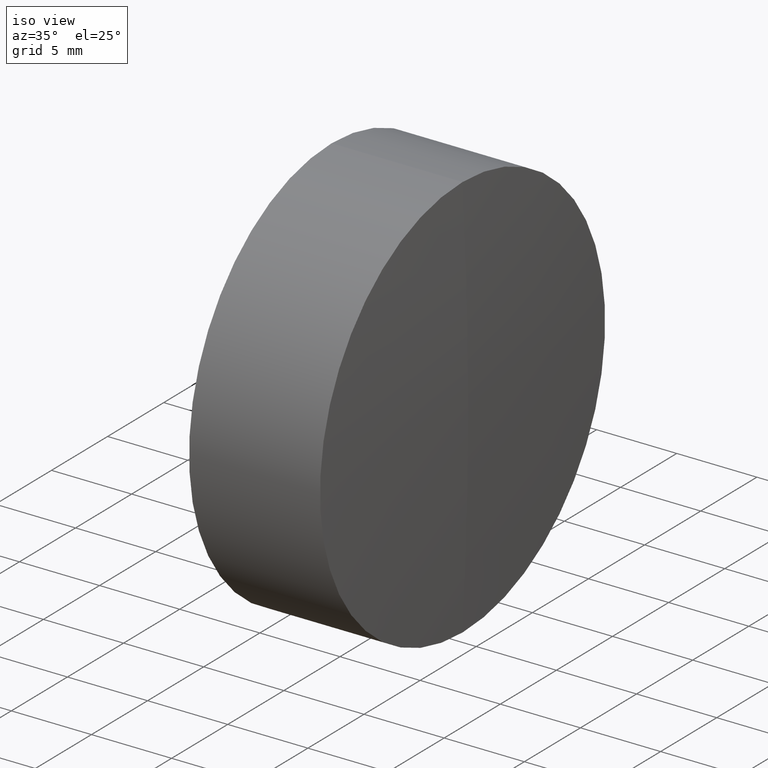
[diagram: clean part render]
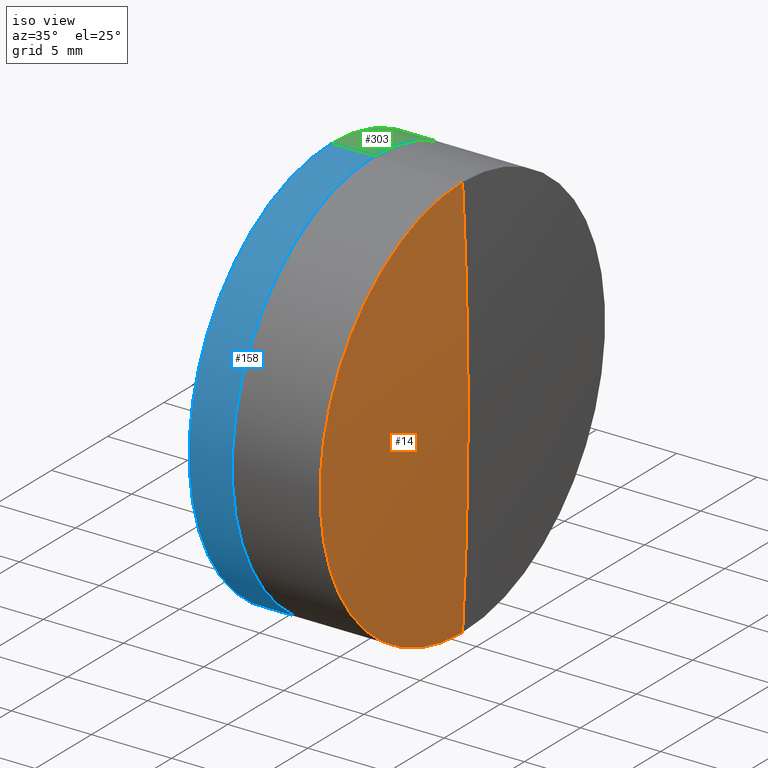
[diagram: same view with three faces highlighted in distinct colors, each labeled with its STEP entity id]
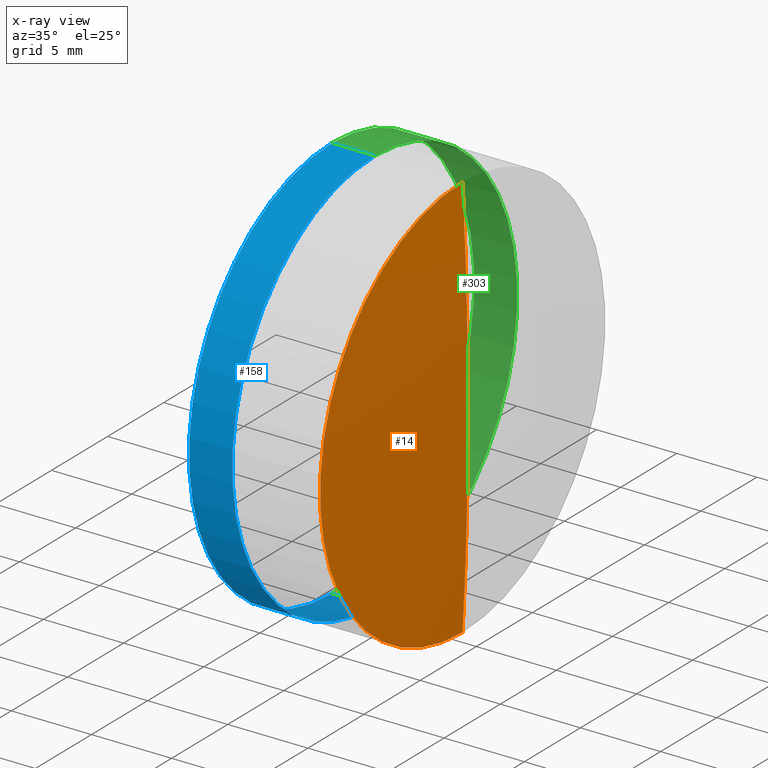
[diagram: x-ray of the same camera — body ghosted, the three highlighted faces saturated]
A machine part, iso view with three faces highlighted in distinct colors.
The next image is the same camera in x-ray (body ghosted, the three faces saturated) — at least one of them is partly hidden behind the body in this view.
Their STEP definitions:

[orange] entity #14 — the highlighted spherical surface has radius 230.7 mm.
#7 = VERTEX_POINT ( 'NONE', #255 ) ;
#14 = ADVANCED_FACE ( 'NONE', ( #160 ), #109, .T. ) ;
#16 = EDGE_CURVE ( 'NONE', #56, #7, #328, .T. ) ;
#22 = DIRECTION ( 'NONE',  ( 0.0000000000000000000, -1.224646799147353200E-016, 1.000000000000000000 ) ) ;
#25 = AXIS2_PLACEMENT_3D ( 'NONE', #308, #245, #220 ) ;
#51 = EDGE_CURVE ( 'NONE', #56, #55, #168, .T. ) ;
#55 = VERTEX_POINT ( 'NONE', #257 ) ;
#56 = VERTEX_POINT ( 'NONE', #100 ) ;
#58 = AXIS2_PLACEMENT_3D ( 'NONE', #218, #161, #22 ) ;
#73 = DIRECTION ( 'NONE',  ( 0.0000000000000000000, 0.0000000000000000000, 1.000000000000000000 ) ) ;
#77 = CARTESIAN_POINT ( 'NONE',  ( 239.1460140306284900, 0.0000000000000000000, 0.0000000000000000000 ) ) ;
#100 = CARTESIAN_POINT ( 'NONE',  ( 239.4958458084194600, 0.0000000000000000000, 1.412630082816472000E-014 ) ) ;
#109 = SPHERICAL_SURFACE ( 'NONE', #252, 230.7000000000000200 ) ;
#129 = AXIS2_PLACEMENT_3D ( 'NONE', #77, #276, #334 ) ;
#160 = FACE_OUTER_BOUND ( 'NONE', #243, .T. ) ;
#161 = DIRECTION ( 'NONE',  ( -0.0000000000000000000, 1.000000000000000000, 1.224646799147353200E-016 ) ) ;
#166 = CARTESIAN_POINT ( 'NONE',  ( 8.795845808419439700, 0.0000000000000000000, 0.0000000000000000000 ) ) ;
#168 = CIRCLE ( 'NONE', #58, 230.7000000000000200 ) ;
#198 = EDGE_CURVE ( 'NONE', #55, #7, #208, .T. ) ;
#208 = CIRCLE ( 'NONE', #129, 12.70000000000001000 ) ;
#218 = CARTESIAN_POINT ( 'NONE',  ( 8.795845808419439700, 0.0000000000000000000, 0.0000000000000000000 ) ) ;
#220 = DIRECTION ( 'NONE',  ( 0.0000000000000000000, 0.0000000000000000000, -1.000000000000000000 ) ) ;
#239 = ORIENTED_EDGE ( 'NONE', *, *, #198, .F. ) ;
#243 = EDGE_LOOP ( 'NONE', ( #272, #317, #239 ) ) ;
#245 = DIRECTION ( 'NONE',  ( 0.0000000000000000000, -1.000000000000000000, 0.0000000000000000000 ) ) ;
#252 = AXIS2_PLACEMENT_3D ( 'NONE', #166, #330, #73 ) ;
#255 = CARTESIAN_POINT ( 'NONE',  ( 239.1460140306284900, 0.0000000000000000000, 12.70000000000001000 ) ) ;
#257 = CARTESIAN_POINT ( 'NONE',  ( 239.1460140306284900, 1.555301434917139800E-015, -12.70000000000001200 ) ) ;
#272 = ORIENTED_EDGE ( 'NONE', *, *, #51, .F. ) ;
#276 = DIRECTION ( 'NONE',  ( -1.000000000000000000, -0.0000000000000000000, -0.0000000000000000000 ) ) ;
#308 = CARTESIAN_POINT ( 'NONE',  ( 8.795845808419439700, 0.0000000000000000000, 0.0000000000000000000 ) ) ;
#317 = ORIENTED_EDGE ( 'NONE', *, *, #16, .T. ) ;
#328 = CIRCLE ( 'NONE', #25, 230.7000000000000200 ) ;
#330 = DIRECTION ( 'NONE',  ( 0.0000000000000000000, 1.000000000000000000, 0.0000000000000000000 ) ) ;
#334 = DIRECTION ( 'NONE',  ( 0.0000000000000000000, 0.0000000000000000000, 1.000000000000000000 ) ) ;

[blue] entity #158 — the highlighted cylindrical surface (partial cylindrical patch) has radius 12.7 mm, axis along (-1, -0, -0).
#8 = CARTESIAN_POINT ( 'NONE',  ( 161.8331716928335000, 0.0000000000000000000, 12.69999999999999600 ) ) ;
#13 = ORIENTED_EDGE ( 'NONE', *, *, #299, .T. ) ;
#17 = CARTESIAN_POINT ( 'NONE',  ( 161.8331716928335000, 0.0000000000000000000, 0.0000000000000000000 ) ) ;
#30 = VERTEX_POINT ( 'NONE', #227 ) ;
#32 = AXIS2_PLACEMENT_3D ( 'NONE', #167, #140, #283 ) ;
#34 = LINE ( 'NONE', #127, #205 ) ;
#42 = DIRECTION ( 'NONE',  ( 0.0000000000000000000, 0.0000000000000000000, 1.000000000000000000 ) ) ;
#44 = CARTESIAN_POINT ( 'NONE',  ( 233.6683955093282600, 0.0000000000000000000, 0.0000000000000000000 ) ) ;
#45 = DIRECTION ( 'NONE',  ( -1.000000000000000000, -0.0000000000000000000, -0.0000000000000000000 ) ) ;
#62 = DIRECTION ( 'NONE',  ( -1.000000000000000000, -0.0000000000000000000, -0.0000000000000000000 ) ) ;
#79 = EDGE_CURVE ( 'NONE', #30, #102, #286, .T. ) ;
#99 = CYLINDRICAL_SURFACE ( 'NONE', #315, 12.69999999999999600 ) ;
#102 = VERTEX_POINT ( 'NONE', #241 ) ;
#106 = EDGE_CURVE ( 'NONE', #346, #137, #34, .T. ) ;
#127 = CARTESIAN_POINT ( 'NONE',  ( 161.8331716928335000, 1.555301434917138000E-015, -12.69999999999999600 ) ) ;
#137 = VERTEX_POINT ( 'NONE', #138 ) ;
#138 = CARTESIAN_POINT ( 'NONE',  ( 230.9768327290389300, 1.555301434917137800E-015, -12.69999999999999800 ) ) ;
#140 = DIRECTION ( 'NONE',  ( -1.000000000000000000, -0.0000000000000000000, -0.0000000000000000000 ) ) ;
#158 = ADVANCED_FACE ( 'NONE', ( #254 ), #99, .T. ) ;
#167 = CARTESIAN_POINT ( 'NONE',  ( 230.9768327290389300, 0.0000000000000000000, 0.0000000000000000000 ) ) ;
#170 = CIRCLE ( 'NONE', #32, 12.69999999999999600 ) ;
#180 = CIRCLE ( 'NONE', #262, 12.69999999999999600 ) ;
#190 = EDGE_LOOP ( 'NONE', ( #281, #13, #316, #333 ) ) ;
#201 = DIRECTION ( 'NONE',  ( -1.000000000000000000, -0.0000000000000000000, -0.0000000000000000000 ) ) ;
#205 = VECTOR ( 'NONE', #201, 1000.000000000000000 ) ;
#225 = DIRECTION ( 'NONE',  ( -1.000000000000000000, -0.0000000000000000000, -0.0000000000000000000 ) ) ;
#226 = DIRECTION ( 'NONE',  ( 0.0000000000000000000, 0.0000000000000000000, 1.000000000000000000 ) ) ;
#227 = CARTESIAN_POINT ( 'NONE',  ( 233.6683955093282600, 0.0000000000000000000, 12.69999999999999600 ) ) ;
#241 = CARTESIAN_POINT ( 'NONE',  ( 230.9768327290389300, 0.0000000000000000000, 12.69999999999999400 ) ) ;
#242 = EDGE_CURVE ( 'NONE', #137, #102, #170, .T. ) ;
#254 = FACE_OUTER_BOUND ( 'NONE', #190, .T. ) ;
#262 = AXIS2_PLACEMENT_3D ( 'NONE', #44, #45, #226 ) ;
#281 = ORIENTED_EDGE ( 'NONE', *, *, #106, .F. ) ;
#283 = DIRECTION ( 'NONE',  ( 0.0000000000000000000, 0.0000000000000000000, 1.000000000000000000 ) ) ;
#285 = CARTESIAN_POINT ( 'NONE',  ( 233.6683955093282600, 1.555301434917138000E-015, -12.69999999999999600 ) ) ;
#286 = LINE ( 'NONE', #8, #327 ) ;
#299 = EDGE_CURVE ( 'NONE', #346, #30, #180, .T. ) ;
#315 = AXIS2_PLACEMENT_3D ( 'NONE', #17, #225, #42 ) ;
#316 = ORIENTED_EDGE ( 'NONE', *, *, #79, .T. ) ;
#327 = VECTOR ( 'NONE', #62, 1000.000000000000000 ) ;
#333 = ORIENTED_EDGE ( 'NONE', *, *, #242, .F. ) ;
#346 = VERTEX_POINT ( 'NONE', #285 ) ;

[green] entity #303 — the highlighted cylindrical surface (partial cylindrical patch) has radius 12.7 mm, axis along (-1, -0, -0).
#8 = CARTESIAN_POINT ( 'NONE',  ( 161.8331716928335000, 0.0000000000000000000, 12.69999999999999600 ) ) ;
#26 = EDGE_CURVE ( 'NONE', #102, #137, #97, .T. ) ;
#30 = VERTEX_POINT ( 'NONE', #227 ) ;
#34 = LINE ( 'NONE', #127, #205 ) ;
#62 = DIRECTION ( 'NONE',  ( -1.000000000000000000, -0.0000000000000000000, -0.0000000000000000000 ) ) ;
#75 = CIRCLE ( 'NONE', #293, 12.69999999999999600 ) ;
#79 = EDGE_CURVE ( 'NONE', #30, #102, #286, .T. ) ;
#80 = ORIENTED_EDGE ( 'NONE', *, *, #79, .F. ) ;
#85 = AXIS2_PLACEMENT_3D ( 'NONE', #256, #112, #282 ) ;
#97 = CIRCLE ( 'NONE', #85, 12.69999999999999600 ) ;
#102 = VERTEX_POINT ( 'NONE', #241 ) ;
#106 = EDGE_CURVE ( 'NONE', #346, #137, #34, .T. ) ;
#112 = DIRECTION ( 'NONE',  ( -1.000000000000000000, -0.0000000000000000000, -0.0000000000000000000 ) ) ;
#120 = DIRECTION ( 'NONE',  ( 0.0000000000000000000, 0.0000000000000000000, 1.000000000000000000 ) ) ;
#121 = ORIENTED_EDGE ( 'NONE', *, *, #26, .F. ) ;
#126 = DIRECTION ( 'NONE',  ( -1.000000000000000000, -0.0000000000000000000, -0.0000000000000000000 ) ) ;
#127 = CARTESIAN_POINT ( 'NONE',  ( 161.8331716928335000, 1.555301434917138000E-015, -12.69999999999999600 ) ) ;
#128 = EDGE_LOOP ( 'NONE', ( #145, #148, #121, #80 ) ) ;
#137 = VERTEX_POINT ( 'NONE', #138 ) ;
#138 = CARTESIAN_POINT ( 'NONE',  ( 230.9768327290389300, 1.555301434917137800E-015, -12.69999999999999800 ) ) ;
#145 = ORIENTED_EDGE ( 'NONE', *, *, #155, .T. ) ;
#146 = CARTESIAN_POINT ( 'NONE',  ( 161.8331716928335000, 0.0000000000000000000, 0.0000000000000000000 ) ) ;
#148 = ORIENTED_EDGE ( 'NONE', *, *, #106, .T. ) ;
#155 = EDGE_CURVE ( 'NONE', #30, #346, #75, .T. ) ;
#197 = CARTESIAN_POINT ( 'NONE',  ( 233.6683955093282600, 0.0000000000000000000, 0.0000000000000000000 ) ) ;
#201 = DIRECTION ( 'NONE',  ( -1.000000000000000000, -0.0000000000000000000, -0.0000000000000000000 ) ) ;
#205 = VECTOR ( 'NONE', #201, 1000.000000000000000 ) ;
#207 = FACE_OUTER_BOUND ( 'NONE', #128, .T. ) ;
#227 = CARTESIAN_POINT ( 'NONE',  ( 233.6683955093282600, 0.0000000000000000000, 12.69999999999999600 ) ) ;
#241 = CARTESIAN_POINT ( 'NONE',  ( 230.9768327290389300, 0.0000000000000000000, 12.69999999999999400 ) ) ;
#256 = CARTESIAN_POINT ( 'NONE',  ( 230.9768327290389300, 0.0000000000000000000, 0.0000000000000000000 ) ) ;
#273 = DIRECTION ( 'NONE',  ( 0.0000000000000000000, 0.0000000000000000000, 1.000000000000000000 ) ) ;
#282 = DIRECTION ( 'NONE',  ( 0.0000000000000000000, 0.0000000000000000000, 1.000000000000000000 ) ) ;
#285 = CARTESIAN_POINT ( 'NONE',  ( 233.6683955093282600, 1.555301434917138000E-015, -12.69999999999999600 ) ) ;
#286 = LINE ( 'NONE', #8, #327 ) ;
#289 = CYLINDRICAL_SURFACE ( 'NONE', #342, 12.69999999999999600 ) ;
#293 = AXIS2_PLACEMENT_3D ( 'NONE', #197, #306, #273 ) ;
#303 = ADVANCED_FACE ( 'NONE', ( #207 ), #289, .T. ) ;
#306 = DIRECTION ( 'NONE',  ( -1.000000000000000000, -0.0000000000000000000, -0.0000000000000000000 ) ) ;
#327 = VECTOR ( 'NONE', #62, 1000.000000000000000 ) ;
#342 = AXIS2_PLACEMENT_3D ( 'NONE', #146, #126, #120 ) ;
#346 = VERTEX_POINT ( 'NONE', #285 ) ;